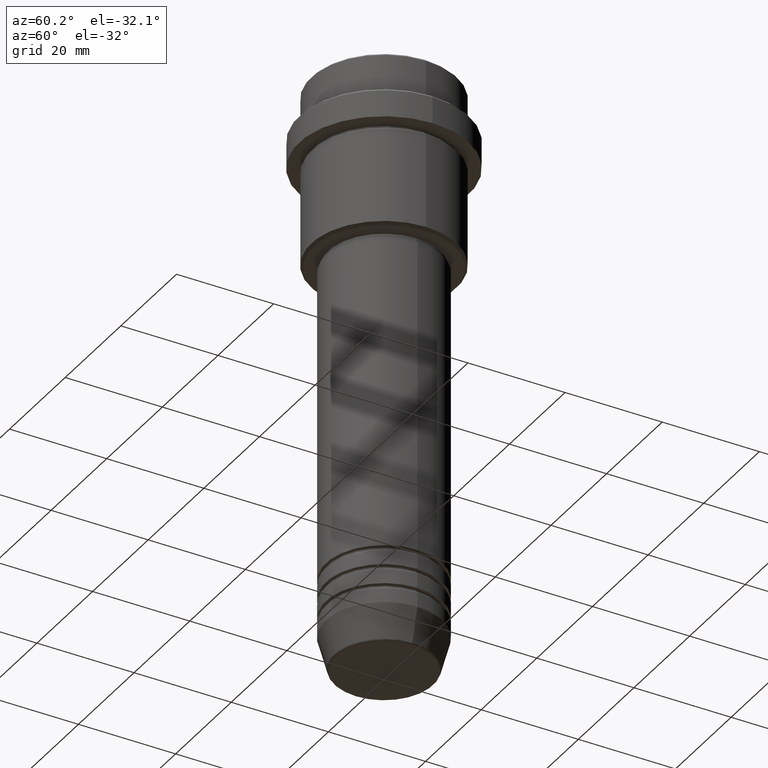
[diagram: clean part render]
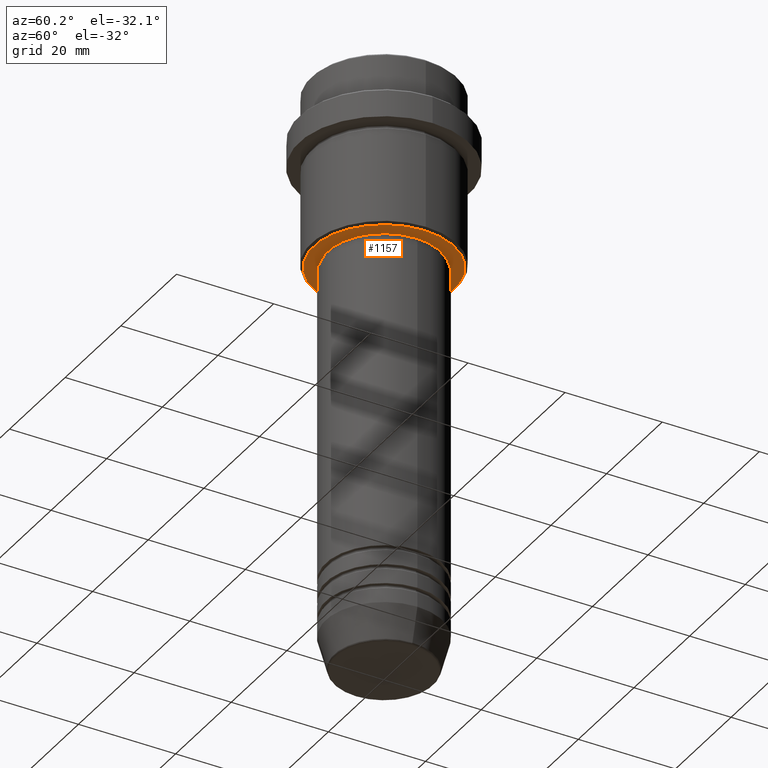
[diagram: same view with one face highlighted and labeled with its STEP entity id]
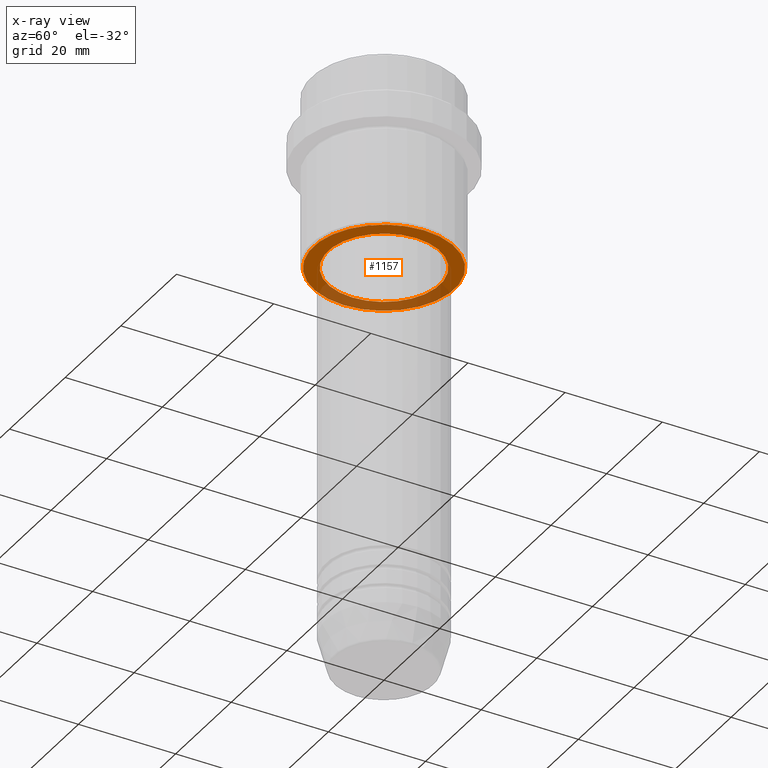
[diagram: x-ray of the same camera — body ghosted, the highlighted face saturated]
A machine part, auxiliary view. The second image highlights one B-rep face of the part: STEP entity #1157.
The next image is the same camera in x-ray: the body ghosted, the highlighted face saturated — about 32% of this face is hidden behind the body in this view.
In plain terms, the highlighted planar face has unit normal (0, 0, -1).
Its self-contained STEP definition (entity closure, byte-faithful):
#15 = CIRCLE ( 'NONE', #664, 14.49999999999998401 ) ;
#50 = EDGE_LOOP ( 'NONE', ( #1191, #894 ) ) ;
#112 = CARTESIAN_POINT ( 'NONE',  ( 0.000000000000000000, 0.000000000000000000, -36.00000000000000711 ) ) ;
#113 = CARTESIAN_POINT ( 'NONE',  ( 0.000000000000000000, 0.000000000000000000, -36.00000000000000711 ) ) ;
#115 = VERTEX_POINT ( 'NONE', #399 ) ;
#166 = DIRECTION ( 'NONE',  ( 0.000000000000000000, 0.000000000000000000, -1.000000000000000000 ) ) ;
#173 = AXIS2_PLACEMENT_3D ( 'NONE', #603, #166, #701 ) ;
#198 = VERTEX_POINT ( 'NONE', #506 ) ;
#236 = VERTEX_POINT ( 'NONE', #1015 ) ;
#247 = CIRCLE ( 'NONE', #1118, 11.49999999999999467 ) ;
#354 = DIRECTION ( 'NONE',  ( -1.000000000000000000, 0.000000000000000000, 0.000000000000000000 ) ) ;
#396 = ORIENTED_EDGE ( 'NONE', *, *, #494, .T. ) ;
#399 = CARTESIAN_POINT ( 'NONE',  ( -11.49999999999999467, 1.408343819019455781E-15, -36.00000000000000711 ) ) ;
#429 = CARTESIAN_POINT ( 'NONE',  ( -14.49999999999998401, 1.806354028742345013E-15, -36.00000000000000711 ) ) ;
#449 = DIRECTION ( 'NONE',  ( -1.000000000000000000, 0.000000000000000000, 0.000000000000000000 ) ) ;
#494 = EDGE_CURVE ( 'NONE', #198, #115, #1029, .T. ) ;
#501 = AXIS2_PLACEMENT_3D ( 'NONE', #686, #672, #1195 ) ;
#506 = CARTESIAN_POINT ( 'NONE',  ( 11.49999999999999467, 0.000000000000000000, -36.00000000000000711 ) ) ;
#581 = EDGE_CURVE ( 'NONE', #115, #198, #247, .T. ) ;
#586 = EDGE_LOOP ( 'NONE', ( #396, #993 ) ) ;
#603 = CARTESIAN_POINT ( 'NONE',  ( 0.000000000000000000, 15.00000000000000000, -36.00000000000000711 ) ) ;
#618 = CIRCLE ( 'NONE', #1406, 14.49999999999998401 ) ;
#664 = AXIS2_PLACEMENT_3D ( 'NONE', #112, #671, #449 ) ;
#671 = DIRECTION ( 'NONE',  ( 0.000000000000000000, 0.000000000000000000, -1.000000000000000000 ) ) ;
#672 = DIRECTION ( 'NONE',  ( -0.000000000000000000, -0.000000000000000000, 1.000000000000000000 ) ) ;
#686 = CARTESIAN_POINT ( 'NONE',  ( 0.000000000000000000, 0.000000000000000000, -36.00000000000000711 ) ) ;
#701 = DIRECTION ( 'NONE',  ( -1.000000000000000000, 0.000000000000000000, -0.000000000000000000 ) ) ;
#712 = CARTESIAN_POINT ( 'NONE',  ( 0.000000000000000000, 0.000000000000000000, -36.00000000000000711 ) ) ;
#772 = DIRECTION ( 'NONE',  ( -0.000000000000000000, -0.000000000000000000, 1.000000000000000000 ) ) ;
#886 = DIRECTION ( 'NONE',  ( 1.000000000000000000, 0.000000000000000000, 0.000000000000000000 ) ) ;
#894 = ORIENTED_EDGE ( 'NONE', *, *, #949, .T. ) ;
#900 = FACE_BOUND ( 'NONE', #586, .T. ) ;
#910 = FACE_OUTER_BOUND ( 'NONE', #50, .T. ) ;
#949 = EDGE_CURVE ( 'NONE', #967, #236, #15, .T. ) ;
#967 = VERTEX_POINT ( 'NONE', #429 ) ;
#993 = ORIENTED_EDGE ( 'NONE', *, *, #581, .T. ) ;
#1015 = CARTESIAN_POINT ( 'NONE',  ( 14.49999999999998401, 0.000000000000000000, -36.00000000000000711 ) ) ;
#1029 = CIRCLE ( 'NONE', #501, 11.49999999999999467 ) ;
#1118 = AXIS2_PLACEMENT_3D ( 'NONE', #113, #772, #886 ) ;
#1127 = PLANE ( 'NONE',  #173 ) ;
#1143 = DIRECTION ( 'NONE',  ( 0.000000000000000000, 0.000000000000000000, -1.000000000000000000 ) ) ;
#1149 = EDGE_CURVE ( 'NONE', #236, #967, #618, .T. ) ;
#1157 = ADVANCED_FACE ( 'NONE', ( #910, #900 ), #1127, .T. ) ;
#1191 = ORIENTED_EDGE ( 'NONE', *, *, #1149, .T. ) ;
#1195 = DIRECTION ( 'NONE',  ( 1.000000000000000000, 0.000000000000000000, 0.000000000000000000 ) ) ;
#1406 = AXIS2_PLACEMENT_3D ( 'NONE', #712, #1143, #354 ) ;